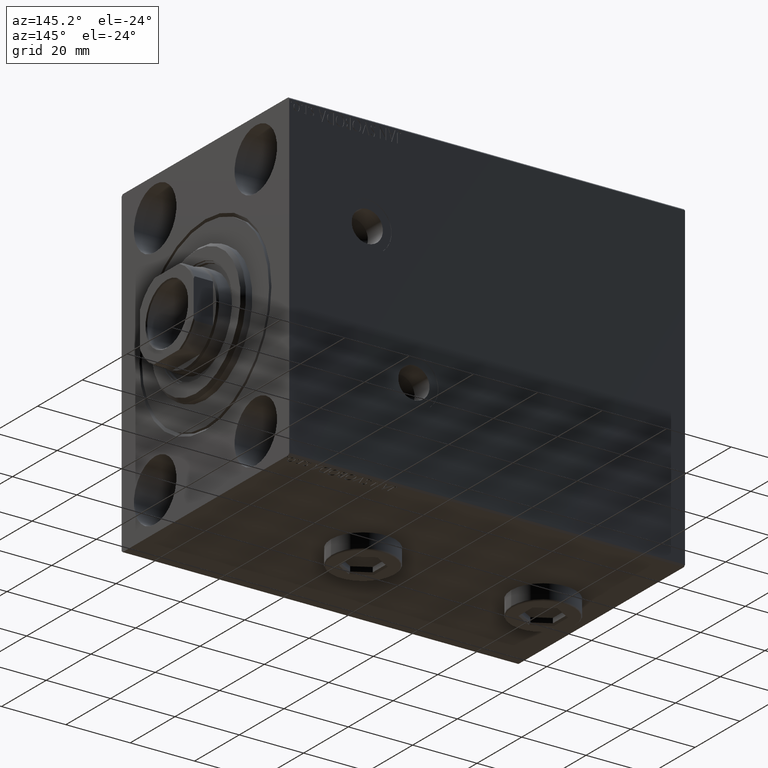
[diagram: clean part render]
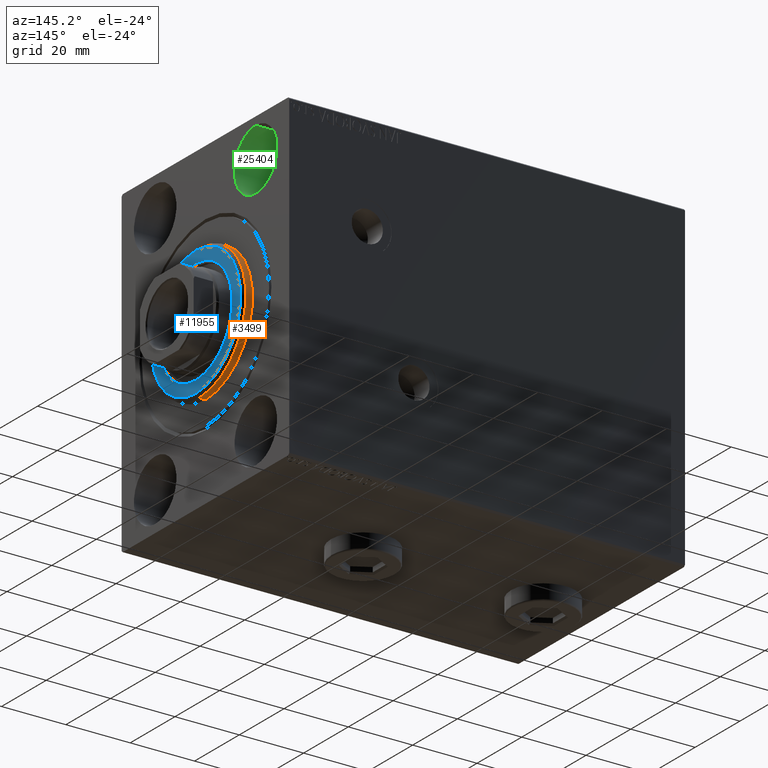
[diagram: same view with three faces highlighted in distinct colors, each labeled with its STEP entity id]
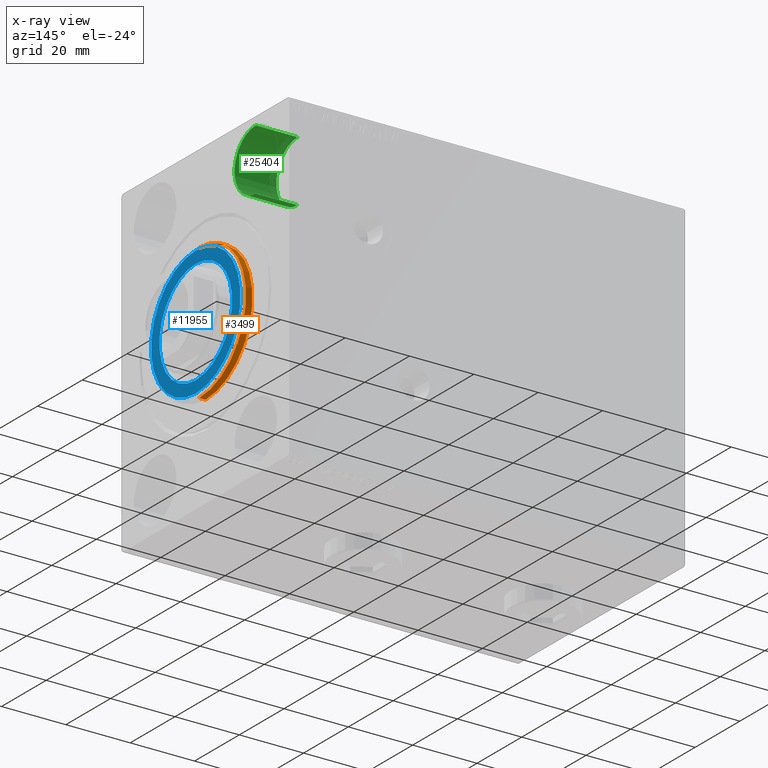
[diagram: x-ray of the same camera — body ghosted, the three highlighted faces saturated]
A machine part, auxiliary view with three faces highlighted in distinct colors.
The next image is the same camera in x-ray (body ghosted, the three faces saturated) — at least one of them is partly hidden behind the body in this view.
Their STEP definitions:

[orange] entity #3499 — the highlighted cylindrical surface (partial cylindrical patch) has radius 21 mm, axis along (-1, -0, -0).
#1256 = EDGE_CURVE ( 'NONE', #37070, #29398, #4037, .T. ) ;
#3122 = VERTEX_POINT ( 'NONE', #10236 ) ;
#3499 = ADVANCED_FACE ( 'NONE', ( #33364 ), #15922, .T. ) ;
#4037 = CIRCLE ( 'NONE', #42650, 21.00000000000000000 ) ;
#6893 = VECTOR ( 'NONE', #33945, 1000.000000000000000 ) ;
#8018 = DIRECTION ( 'NONE',  ( -1.000000000000000000, -0.000000000000000000, -0.000000000000000000 ) ) ;
#9061 = CARTESIAN_POINT ( 'NONE',  ( 2.000000000000009770, 0.000000000000000000, 21.00000000000000000 ) ) ;
#10236 = CARTESIAN_POINT ( 'NONE',  ( 0.000000000000000000, 2.571758278209441661E-15, -21.00000000000000000 ) ) ;
#10719 = DIRECTION ( 'NONE',  ( -1.000000000000000000, 0.000000000000000000, 0.000000000000000000 ) ) ;
#10926 = CARTESIAN_POINT ( 'NONE',  ( 3.000000000000000000, 2.571758278209441661E-15, -21.00000000000000000 ) ) ;
#13682 = CARTESIAN_POINT ( 'NONE',  ( 3.000000000000000000, 0.000000000000000000, 21.00000000000000000 ) ) ;
#13750 = DIRECTION ( 'NONE',  ( 0.000000000000000000, 0.000000000000000000, -1.000000000000000000 ) ) ;
#15922 = CYLINDRICAL_SURFACE ( 'NONE', #19695, 21.00000000000000000 ) ;
#19275 = EDGE_LOOP ( 'NONE', ( #39265, #44762, #23738, #28086 ) ) ;
#19695 = AXIS2_PLACEMENT_3D ( 'NONE', #26158, #8018, #43811 ) ;
#19915 = VERTEX_POINT ( 'NONE', #36107 ) ;
#20490 = CARTESIAN_POINT ( 'NONE',  ( 2.000000000000009770, 0.000000000000000000, 0.000000000000000000 ) ) ;
#20717 = VECTOR ( 'NONE', #39276, 1000.000000000000000 ) ;
#21843 = CARTESIAN_POINT ( 'NONE',  ( 0.000000000000000000, 0.000000000000000000, 0.000000000000000000 ) ) ;
#23738 = ORIENTED_EDGE ( 'NONE', *, *, #35935, .T. ) ;
#26158 = CARTESIAN_POINT ( 'NONE',  ( 3.000000000000000000, 0.000000000000000000, 0.000000000000000000 ) ) ;
#28086 = ORIENTED_EDGE ( 'NONE', *, *, #43286, .F. ) ;
#28545 = EDGE_CURVE ( 'NONE', #29398, #3122, #42764, .T. ) ;
#29398 = VERTEX_POINT ( 'NONE', #42546 ) ;
#31269 = AXIS2_PLACEMENT_3D ( 'NONE', #21843, #43226, #36016 ) ;
#32718 = CIRCLE ( 'NONE', #31269, 21.00000000000000000 ) ;
#33364 = FACE_OUTER_BOUND ( 'NONE', #19275, .T. ) ;
#33945 = DIRECTION ( 'NONE',  ( -1.000000000000000000, -0.000000000000000000, -0.000000000000000000 ) ) ;
#34840 = LINE ( 'NONE', #13682, #6893 ) ;
#35935 = EDGE_CURVE ( 'NONE', #3122, #19915, #32718, .T. ) ;
#36016 = DIRECTION ( 'NONE',  ( 0.000000000000000000, 0.000000000000000000, -1.000000000000000000 ) ) ;
#36107 = CARTESIAN_POINT ( 'NONE',  ( 0.000000000000000000, 0.000000000000000000, 21.00000000000000000 ) ) ;
#37070 = VERTEX_POINT ( 'NONE', #9061 ) ;
#39265 = ORIENTED_EDGE ( 'NONE', *, *, #1256, .T. ) ;
#39276 = DIRECTION ( 'NONE',  ( -1.000000000000000000, -0.000000000000000000, -0.000000000000000000 ) ) ;
#42546 = CARTESIAN_POINT ( 'NONE',  ( 2.000000000000009770, 2.571758278209441661E-15, -21.00000000000000000 ) ) ;
#42650 = AXIS2_PLACEMENT_3D ( 'NONE', #20490, #10719, #13750 ) ;
#42764 = LINE ( 'NONE', #10926, #20717 ) ;
#43226 = DIRECTION ( 'NONE',  ( 1.000000000000000000, -0.000000000000000000, 0.000000000000000000 ) ) ;
#43286 = EDGE_CURVE ( 'NONE', #37070, #19915, #34840, .T. ) ;
#43811 = DIRECTION ( 'NONE',  ( 0.000000000000000000, 0.000000000000000000, 1.000000000000000000 ) ) ;
#44762 = ORIENTED_EDGE ( 'NONE', *, *, #28545, .T. ) ;

[blue] entity #11955 — the highlighted planar face has unit normal (1, 0, 0).
#643 = CARTESIAN_POINT ( 'NONE',  ( 3.000000000000000000, 0.000000000000000000, 0.000000000000000000 ) ) ;
#1898 = EDGE_CURVE ( 'NONE', #26370, #17959, #35218, .T. ) ;
#3859 = CARTESIAN_POINT ( 'NONE',  ( 3.000000000000000000, 0.000000000000000000, 0.000000000000000000 ) ) ;
#5321 = DIRECTION ( 'NONE',  ( 1.000000000000000000, 0.000000000000000000, 0.000000000000000000 ) ) ;
#6276 = EDGE_CURVE ( 'NONE', #17959, #26370, #22020, .T. ) ;
#6573 = AXIS2_PLACEMENT_3D ( 'NONE', #643, #40176, #11591 ) ;
#6700 = ORIENTED_EDGE ( 'NONE', *, *, #6276, .F. ) ;
#7863 = PLANE ( 'NONE',  #6573 ) ;
#10867 = AXIS2_PLACEMENT_3D ( 'NONE', #14869, #5321, #44136 ) ;
#11591 = DIRECTION ( 'NONE',  ( 0.000000000000000000, 0.000000000000000000, -1.000000000000000000 ) ) ;
#11955 = ADVANCED_FACE ( 'NONE', ( #43890, #29732 ), #7863, .T. ) ;
#12395 = CARTESIAN_POINT ( 'NONE',  ( 3.000000000000000000, 0.000000000000000000, 0.000000000000000000 ) ) ;
#13450 = CARTESIAN_POINT ( 'NONE',  ( 3.000000000000000000, 2.510525938252075270E-15, -20.00000000000001776 ) ) ;
#14037 = EDGE_CURVE ( 'NONE', #14943, #42078, #14785, .T. ) ;
#14785 = CIRCLE ( 'NONE', #37810, 20.00000000000001776 ) ;
#14869 = CARTESIAN_POINT ( 'NONE',  ( 3.000000000000000000, 0.000000000000000000, 0.000000000000000000 ) ) ;
#14943 = VERTEX_POINT ( 'NONE', #33367 ) ;
#17959 = VERTEX_POINT ( 'NONE', #23685 ) ;
#18038 = DIRECTION ( 'NONE',  ( 0.000000000000000000, 0.000000000000000000, -1.000000000000000000 ) ) ;
#18710 = DIRECTION ( 'NONE',  ( 1.000000000000000000, -0.000000000000000000, 0.000000000000000000 ) ) ;
#21965 = EDGE_CURVE ( 'NONE', #42078, #14943, #31988, .T. ) ;
#22020 = CIRCLE ( 'NONE', #10867, 16.25000000000000000 ) ;
#22430 = DIRECTION ( 'NONE',  ( 0.000000000000000000, 0.000000000000000000, -1.000000000000000000 ) ) ;
#23685 = CARTESIAN_POINT ( 'NONE',  ( 3.000000000000000000, 0.000000000000000000, -16.25000000000000000 ) ) ;
#26331 = CARTESIAN_POINT ( 'NONE',  ( 3.000000000000000000, 1.990051048614449313E-15, 16.25000000000000000 ) ) ;
#26370 = VERTEX_POINT ( 'NONE', #26331 ) ;
#26573 = DIRECTION ( 'NONE',  ( 1.000000000000000000, -0.000000000000000000, 0.000000000000000000 ) ) ;
#27799 = AXIS2_PLACEMENT_3D ( 'NONE', #3859, #38955, #18038 ) ;
#29732 = FACE_BOUND ( 'NONE', #45275, .T. ) ;
#30117 = ORIENTED_EDGE ( 'NONE', *, *, #1898, .F. ) ;
#31988 = CIRCLE ( 'NONE', #40137, 20.00000000000001776 ) ;
#33367 = CARTESIAN_POINT ( 'NONE',  ( 3.000000000000000000, 0.000000000000000000, 20.00000000000001776 ) ) ;
#35218 = CIRCLE ( 'NONE', #27799, 16.25000000000000000 ) ;
#35733 = EDGE_LOOP ( 'NONE', ( #43510, #36409 ) ) ;
#36409 = ORIENTED_EDGE ( 'NONE', *, *, #21965, .T. ) ;
#37810 = AXIS2_PLACEMENT_3D ( 'NONE', #43809, #18710, #22430 ) ;
#38955 = DIRECTION ( 'NONE',  ( 1.000000000000000000, 0.000000000000000000, 0.000000000000000000 ) ) ;
#40137 = AXIS2_PLACEMENT_3D ( 'NONE', #12395, #26573, #40741 ) ;
#40176 = DIRECTION ( 'NONE',  ( 1.000000000000000000, -0.000000000000000000, 0.000000000000000000 ) ) ;
#40741 = DIRECTION ( 'NONE',  ( 0.000000000000000000, 0.000000000000000000, -1.000000000000000000 ) ) ;
#42078 = VERTEX_POINT ( 'NONE', #13450 ) ;
#43510 = ORIENTED_EDGE ( 'NONE', *, *, #14037, .T. ) ;
#43809 = CARTESIAN_POINT ( 'NONE',  ( 3.000000000000000000, 0.000000000000000000, 0.000000000000000000 ) ) ;
#43890 = FACE_OUTER_BOUND ( 'NONE', #35733, .T. ) ;
#44136 = DIRECTION ( 'NONE',  ( 0.000000000000000000, 0.000000000000000000, -1.000000000000000000 ) ) ;
#45275 = EDGE_LOOP ( 'NONE', ( #6700, #30117 ) ) ;

[green] entity #25404 — the highlighted cylindrical surface (partial cylindrical patch) has radius 9.5 mm, axis along (1, -0, 0).
#2362 = CARTESIAN_POINT ( 'NONE',  ( 13.00000000000000000, 22.49999999999999289, -47.50000000000000000 ) ) ;
#2875 = EDGE_CURVE ( 'NONE', #38171, #44033, #26323, .T. ) ;
#5616 = DIRECTION ( 'NONE',  ( 0.000000000000000000, 0.000000000000000000, 1.000000000000000000 ) ) ;
#5839 = CARTESIAN_POINT ( 'NONE',  ( 0.000000000000000000, 22.49999999999999289, -38.00000000000000000 ) ) ;
#8141 = FACE_OUTER_BOUND ( 'NONE', #32143, .T. ) ;
#10596 = CIRCLE ( 'NONE', #41778, 9.500000000000001776 ) ;
#14379 = CARTESIAN_POINT ( 'NONE',  ( 13.00000000000000000, 22.49999999999999289, -28.49999999999999645 ) ) ;
#14652 = CARTESIAN_POINT ( 'NONE',  ( 13.00000000000000000, 22.49999999999999289, -38.00000000000000000 ) ) ;
#16999 = VECTOR ( 'NONE', #37239, 1000.000000000000000 ) ;
#17457 = EDGE_CURVE ( 'NONE', #41583, #32938, #40720, .T. ) ;
#23815 = AXIS2_PLACEMENT_3D ( 'NONE', #5839, #44436, #5616 ) ;
#25404 = ADVANCED_FACE ( 'NONE', ( #8141 ), #43464, .F. ) ;
#25615 = VECTOR ( 'NONE', #36310, 1000.000000000000000 ) ;
#26047 = DIRECTION ( 'NONE',  ( -1.000000000000000000, -0.000000000000000000, -0.000000000000000000 ) ) ;
#26323 = LINE ( 'NONE', #29831, #25615 ) ;
#26496 = DIRECTION ( 'NONE',  ( -1.000000000000000000, 0.000000000000000000, 0.000000000000000000 ) ) ;
#27194 = ORIENTED_EDGE ( 'NONE', *, *, #17457, .T. ) ;
#27720 = ORIENTED_EDGE ( 'NONE', *, *, #36664, .T. ) ;
#29782 = CIRCLE ( 'NONE', #23815, 9.500000000000001776 ) ;
#29831 = CARTESIAN_POINT ( 'NONE',  ( 13.00000000000000000, 22.49999999999999289, -28.49999999999999645 ) ) ;
#31040 = CARTESIAN_POINT ( 'NONE',  ( 0.000000000000000000, 22.49999999999999289, -47.50000000000000000 ) ) ;
#31790 = AXIS2_PLACEMENT_3D ( 'NONE', #14652, #26047, #39281 ) ;
#32143 = EDGE_LOOP ( 'NONE', ( #39704, #27194, #27720, #41969 ) ) ;
#32938 = VERTEX_POINT ( 'NONE', #31040 ) ;
#36310 = DIRECTION ( 'NONE',  ( -1.000000000000000000, -0.000000000000000000, -0.000000000000000000 ) ) ;
#36664 = EDGE_CURVE ( 'NONE', #32938, #44033, #29782, .T. ) ;
#37239 = DIRECTION ( 'NONE',  ( -1.000000000000000000, -0.000000000000000000, -0.000000000000000000 ) ) ;
#38171 = VERTEX_POINT ( 'NONE', #14379 ) ;
#39281 = DIRECTION ( 'NONE',  ( 0.000000000000000000, 0.000000000000000000, 1.000000000000000000 ) ) ;
#39704 = ORIENTED_EDGE ( 'NONE', *, *, #41948, .F. ) ;
#39978 = DIRECTION ( 'NONE',  ( 0.000000000000000000, 0.000000000000000000, 1.000000000000000000 ) ) ;
#40720 = LINE ( 'NONE', #2362, #16999 ) ;
#41583 = VERTEX_POINT ( 'NONE', #43862 ) ;
#41778 = AXIS2_PLACEMENT_3D ( 'NONE', #43693, #26496, #39978 ) ;
#41948 = EDGE_CURVE ( 'NONE', #41583, #38171, #10596, .T. ) ;
#41969 = ORIENTED_EDGE ( 'NONE', *, *, #2875, .F. ) ;
#43464 = CYLINDRICAL_SURFACE ( 'NONE', #31790, 9.500000000000001776 ) ;
#43693 = CARTESIAN_POINT ( 'NONE',  ( 13.00000000000000000, 22.49999999999999289, -38.00000000000000000 ) ) ;
#43862 = CARTESIAN_POINT ( 'NONE',  ( 13.00000000000000000, 22.49999999999999289, -47.50000000000000000 ) ) ;
#44033 = VERTEX_POINT ( 'NONE', #44471 ) ;
#44436 = DIRECTION ( 'NONE',  ( -1.000000000000000000, 0.000000000000000000, 0.000000000000000000 ) ) ;
#44471 = CARTESIAN_POINT ( 'NONE',  ( 0.000000000000000000, 22.49999999999999289, -28.49999999999999645 ) ) ;